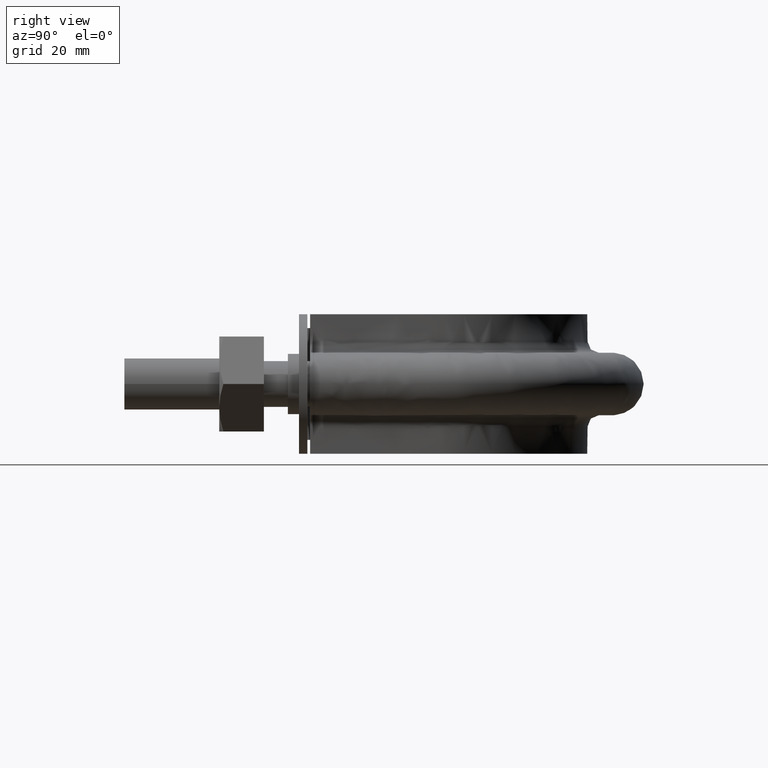
[diagram: clean part render]
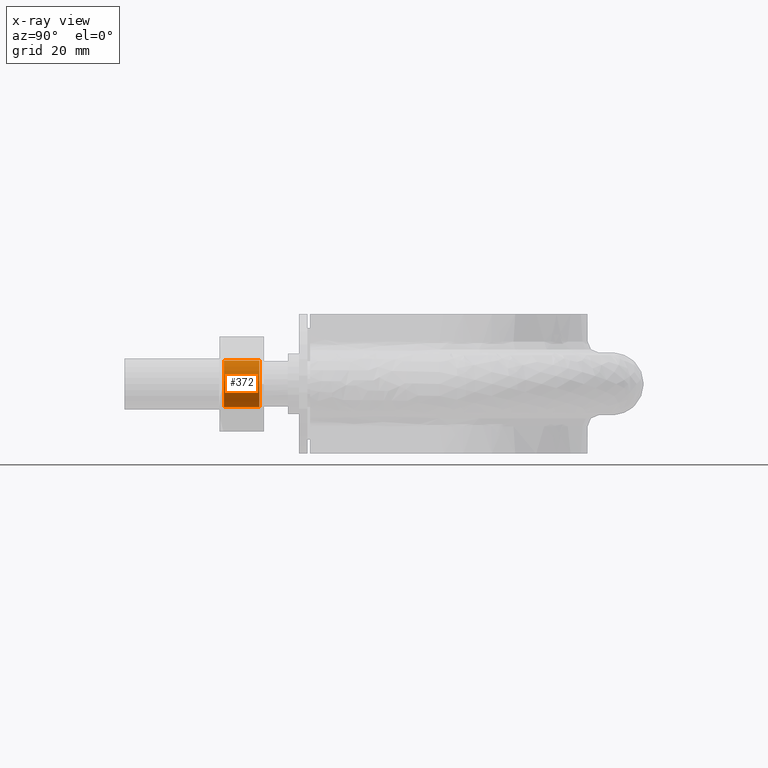
[diagram: x-ray — body ghosted, one internal face saturated and labeled with its STEP entity id]
A machine part, right view, then the same camera in x-ray: the body is ghosted and one INTERNAL B-rep face — a face not visible from any outside direction — is saturated and labeled: STEP entity #372.
In plain terms, the highlighted cylindrical surface (bore or boss wall) has radius 4.188 mm, axis along (0, 1, 0).
Its self-contained STEP definition (entity closure, byte-faithful):
#372 = ADVANCED_FACE( '', ( #619, #620 ), #621, .F. );
#619 = FACE_OUTER_BOUND( '', #1697, .T. );
#620 = FACE_OUTER_BOUND( '', #1698, .T. );
#621 = CYLINDRICAL_SURFACE( '', #1699, 4.18800000000000 );
#1697 = EDGE_LOOP( '', ( #2475 ) );
#1698 = EDGE_LOOP( '', ( #2476 ) );
#1699 = AXIS2_PLACEMENT_3D( '', #2477, #2478, #2479 );
#2475 = ORIENTED_EDGE( '', *, *, #2746, .F. );
#2476 = ORIENTED_EDGE( '', *, *, #2718, .T. );
#2477 = CARTESIAN_POINT( '', ( 31.0000000000000, 25.0000000000000, 7.85278824388600E-015 ) );
#2478 = DIRECTION( '', ( 2.44921270764476E-016, 1.00000000000000, 3.06151588455594E-016 ) );
#2479 = DIRECTION( '', ( 0.866025403788559, -5.90322481845998E-017, -0.499999999992863 ) );
#2718 = EDGE_CURVE( '', #3088, #3088, #3089, .T. );
#2746 = EDGE_CURVE( '', #3133, #3133, #3134, .F. );
#3088 = VERTEX_POINT( '', #3901 );
#3089 = CIRCLE( '', #3902, 4.18800000000000 );
#3133 = VERTEX_POINT( '', #3975 );
#3134 = CIRCLE( '', #3976, 4.18800000000000 );
#3901 = CARTESIAN_POINT( '', ( 31.0000000000000, 24.1880000000001, 4.18800000000001 ) );
#3902 = AXIS2_PLACEMENT_3D( '', #4274, #4275, #4276 );
#3975 = CARTESIAN_POINT( '', ( 31.0000000000000, 17.8120000000012, -4.18799999999999 ) );
#3976 = AXIS2_PLACEMENT_3D( '', #4328, #4329, #4330 );
#4274 = CARTESIAN_POINT( '', ( 31.0000000000000, 24.1880000000001, 7.60419315406009E-015 ) );
#4275 = DIRECTION( '', ( 2.44921270764476E-016, 1.00000000000000, 3.06151588455594E-016 ) );
#4276 = DIRECTION( '', ( 0.000000000000000, -3.06151588455594E-016, 1.00000000000000 ) );
#4328 = CARTESIAN_POINT( '', ( 31.0000000000000, 17.8120000000012, 5.65217062606755E-015 ) );
#4329 = DIRECTION( '', ( -2.44921270764476E-016, -1.00000000000000, -3.06151588455594E-016 ) );
#4330 = DIRECTION( '', ( 0.000000000000000, 3.06151588455594E-016, -1.00000000000000 ) );